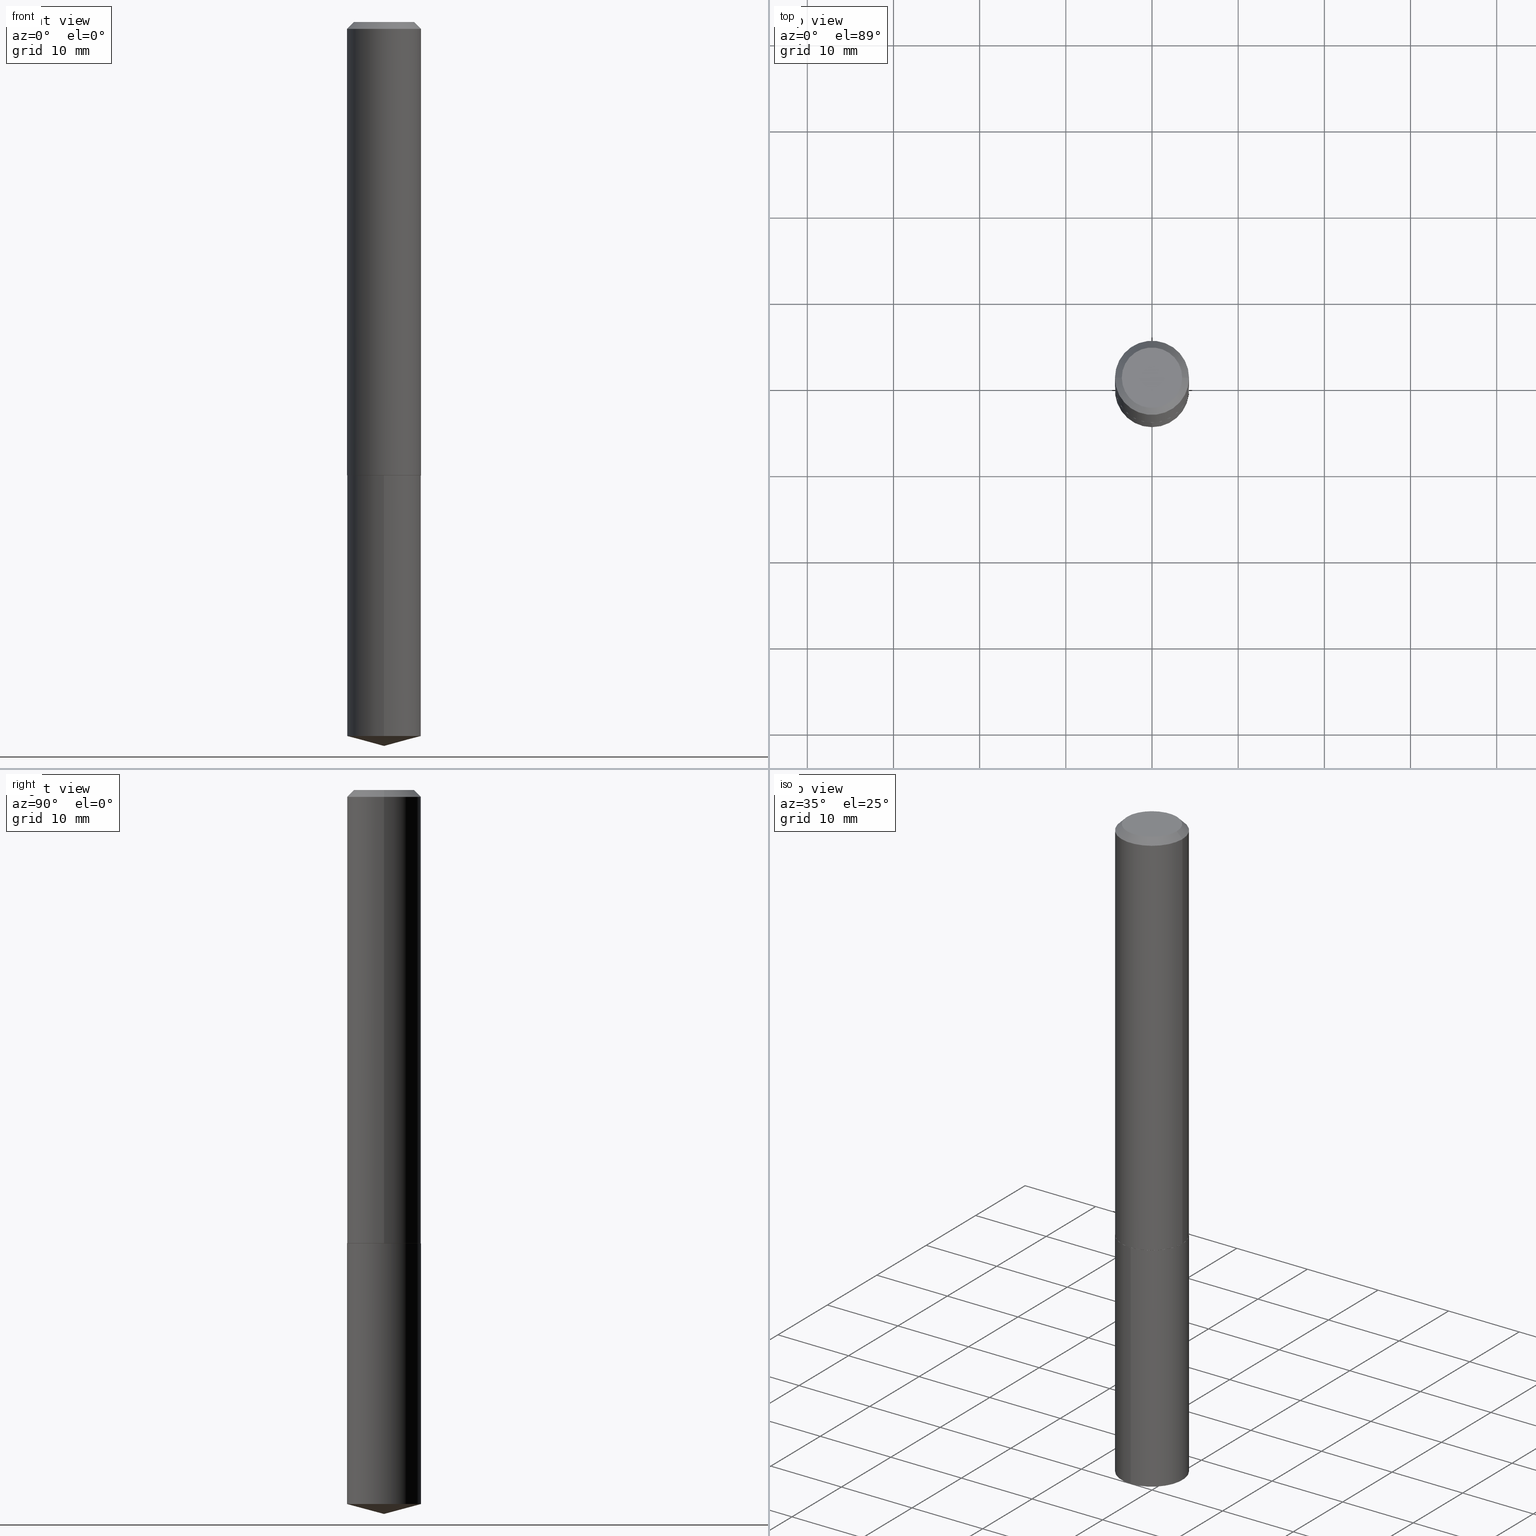
[diagram: canonical four-view strip — front | top / right | iso, engineering-drawing reading convention]
A machine part, canonical four-view strip (front | top / right | iso — engineering-drawing reading convention). The complete STEP part file that produces these views, byte-faithful:
ISO-10303-21;
HEADER;
FILE_DESCRIPTION (( 'STEP AP203' ),
    '1' );
FILE_NAME ('69021.STEP',
    '2024-04-23T14:23:53',
    ( '' ),
    ( '' ),
    'SwSTEP 2.0',
    'SolidWorks 2023',
    '' );
FILE_SCHEMA (( 'CONFIG_CONTROL_DESIGN' ));
ENDSEC;

DATA;
#1 = CARTESIAN_POINT ( 'NONE',  ( -0.1693000000000002836, -6.025814112298998676E-15, -2.070400000000000240 ) ) ;
#2 = AXIS2_PLACEMENT_3D ( 'NONE', #319, #142, #58 ) ;
#3 = CARTESIAN_POINT ( 'NONE',  ( -8.819312103173026393E-28, 1.259100217101036887E-13, 36.06297874015748306 ) ) ;
#4 = VERTEX_POINT ( 'NONE', #101 ) ;
#5 = EDGE_CURVE ( 'NONE', #293, #158, #303, .T. ) ;
#6 = EDGE_LOOP ( 'NONE', ( #354, #128, #26, #385 ) ) ;
#7 = DIRECTION ( 'NONE',  ( -2.445527322775399676E-29, 3.491397539755331184E-15, 1.000000000000000000 ) ) ;
#8 = ADVANCED_FACE ( 'NONE', ( #261 ), #163, .T. ) ;
#9 = CARTESIAN_POINT ( 'NONE',  ( 5.064321350728799708E-29, -7.230508704610271415E-15, -2.070900000000000407 ) ) ;
#10 = CARTESIAN_POINT ( 'NONE',  ( 5.063098616325708028E-29, -7.228762963940850701E-15, -2.070400000000000240 ) ) ;
#11 = DATE_AND_TIME ( #44, #309 ) ;
#12 = PRODUCT_DEFINITION_FORMATION_WITH_SPECIFIED_SOURCE ( 'ANY', '', #383, .NOT_KNOWN. ) ;
#13 = CARTESIAN_POINT ( 'NONE',  ( -1.182215581332204746E-15, -0.1693000000000113858, -3.261736201721411099 ) ) ;
#14 = SHAPE_DEFINITION_REPRESENTATION ( #217, #25 ) ;
#15 = DIRECTION ( 'NONE',  ( 1.000000000000000000, -6.982962677686264344E-15, 0.000000000000000000 ) ) ;
#16 = CARTESIAN_POINT ( 'NONE',  ( -8.819312103173026393E-28, 1.259100217101036887E-13, 36.06297874015748306 ) ) ;
#17 = DIRECTION ( 'NONE',  ( -1.000000000000000000, 6.982962677686265922E-15, -4.876176775795935793E-29 ) ) ;
#18 = ADVANCED_FACE ( 'NONE', ( #50 ), #279, .T. ) ;
#19 = CARTESIAN_POINT ( 'NONE',  ( 7.642090019328600035E-31, -1.091087918388489897E-16, -0.03125000000000020123 ) ) ;
#20 = ORIENTED_EDGE ( 'NONE', *, *, #286, .F. ) ;
#21 = APPROVAL_STATUS ( 'not_yet_approved' ) ;
#22 =( NAMED_UNIT ( * ) PLANE_ANGLE_UNIT ( ) SI_UNIT ( $, .RADIAN. ) );
#23 = FACE_OUTER_BOUND ( 'NONE', #243, .T. ) ;
#24 = DIRECTION ( 'NONE',  ( -2.445527322775399676E-29, 3.491397539755331184E-15, 1.000000000000000000 ) ) ;
#25 = ADVANCED_BREP_SHAPE_REPRESENTATION ( '69021', ( #162, #288, #70 ), #49 ) ;
#26 = ORIENTED_EDGE ( 'NONE', *, *, #121, .F. ) ;
#27 = PERSON_AND_ORGANIZATION ( #331, #337 ) ;
#28 = FACE_OUTER_BOUND ( 'NONE', #6, .T. ) ;
#29 = ORIENTED_EDGE ( 'NONE', *, *, #256, .T. ) ;
#30 = ADVANCED_FACE ( 'NONE', ( #291 ), #289, .F. ) ;
#31 = DIRECTION ( 'NONE',  ( -6.982962677686266711E-15, -1.000000000000000000, 3.510303681827621500E-15 ) ) ;
#32 = VECTOR ( 'NONE', #7, 39.37007874015748143 ) ;
#33 = UNCERTAINTY_MEASURE_WITH_UNIT (LENGTH_MEASURE( 1.000000000000000082E-05 ), #197, 'distance_accuracy_value', 'NONE');
#34 = DIRECTION ( 'NONE',  ( 1.000000000000000000, -6.982962677686267499E-15, 0.000000000000000000 ) ) ;
#35 = DIRECTION ( 'NONE',  ( -6.745023994389839133E-15, -0.9659258262890676461, 0.2588190451025227934 ) ) ;
#36 = EDGE_LOOP ( 'NONE', ( #174, #389, #147 ) ) ;
#37 = CARTESIAN_POINT ( 'NONE',  ( -0.1693000000000000338, 1.073106789493436109E-15, -0.03125000000000020123 ) ) ;
#38 = VECTOR ( 'NONE', #151, 39.37007874015748143 ) ;
#39 = APPROVAL_PERSON_ORGANIZATION ( #46, #271, #226 ) ;
#40 = DIRECTION ( 'NONE',  ( -0.7071067811865453523, 2.468850131082234184E-15, -0.7071067811865496822 ) ) ;
#41 = ORIENTED_EDGE ( 'NONE', *, *, #379, .F. ) ;
#42 = DIRECTION ( 'NONE',  ( -6.982962677686265922E-15, -1.000000000000000000, 3.227227399485248397E-15 ) ) ;
#43 = EDGE_CURVE ( 'NONE', #208, #375, #178, .T. ) ;
#44 = CALENDAR_DATE ( 2024, 23, 4 ) ;
#45 = AXIS2_PLACEMENT_3D ( 'NONE', #9, #339, #42 ) ;
#46 = PERSON_AND_ORGANIZATION ( #331, #337 ) ;
#47 = AXIS2_PLACEMENT_3D ( 'NONE', #229, #227, #356 ) ;
#48 = DIRECTION ( 'NONE',  ( -6.982962677686266711E-15, -1.000000000000000000, 3.510303681827621500E-15 ) ) ;
#49 =( GEOMETRIC_REPRESENTATION_CONTEXT ( 3 ) GLOBAL_UNCERTAINTY_ASSIGNED_CONTEXT ( ( #33 ) ) GLOBAL_UNIT_ASSIGNED_CONTEXT ( ( #197, #22, #177 ) ) REPRESENTATION_CONTEXT ( 'NONE', 'WORKASPACE' ) );
#50 = FACE_OUTER_BOUND ( 'NONE', #239, .T. ) ;
#51 = ADVANCED_FACE ( 'NONE', ( #23 ), #77, .F. ) ;
#52 = CARTESIAN_POINT ( 'NONE',  ( 0.1693000000000002836, -8.410978545273137094E-15, -2.070400000000000240 ) ) ;
#53 = CC_DESIGN_DATE_AND_TIME_ASSIGNMENT ( #257, #76, ( #71 ) ) ;
#54 = CARTESIAN_POINT ( 'NONE',  ( 5.063098616325708028E-29, -7.228762963940850701E-15, -2.070400000000000240 ) ) ;
#55 = COORDINATED_UNIVERSAL_TIME_OFFSET ( 5, 0, .BEHIND. ) ;
#56 = ORIENTED_EDGE ( 'NONE', *, *, #286, .T. ) ;
#57 = DATE_AND_TIME ( #346, #83 ) ;
#58 = DIRECTION ( 'NONE',  ( -6.982962677686265922E-15, -1.000000000000000000, 3.227227399485248397E-15 ) ) ;
#59 = APPROVAL_DATE_TIME ( #81, #241 ) ;
#60 = LINE ( 'NONE', #359, #38 ) ;
#61 = ORIENTED_EDGE ( 'NONE', *, *, #167, .F. ) ;
#62 = PERSON_AND_ORGANIZATION ( #331, #337 ) ;
#63 = ORIENTED_EDGE ( 'NONE', *, *, #121, .T. ) ;
#64 = CYLINDRICAL_SURFACE ( 'NONE', #388, 0.1693000000000000338 ) ;
#65 = AXIS2_PLACEMENT_3D ( 'NONE', #84, #345, #15 ) ;
#66 = CIRCLE ( 'NONE', #103, 0.1688000000000002554 ) ;
#67 = CARTESIAN_POINT ( 'NONE',  ( 7.642090019328600035E-31, -1.091087918388489897E-16, -0.03125000000000020123 ) ) ;
#68 = ORIENTED_EDGE ( 'NONE', *, *, #311, .F. ) ;
#69 = VECTOR ( 'NONE', #250, 39.37007874015748143 ) ;
#70 = AXIS2_PLACEMENT_3D ( 'NONE', #230, #282, #169 ) ;
#71 = PRODUCT_DEFINITION ( 'UNKNOWN', '', #12, #276 ) ;
#72 = DIRECTION ( 'NONE',  ( -1.000000000000000000, 6.982962677686265922E-15, 0.000000000000000000 ) ) ;
#73 = CONICAL_SURFACE ( 'NONE', #284, 0.1693000000000002836, 0.7853981633978580623 ) ;
#74 = AXIS2_PLACEMENT_3D ( 'NONE', #10, #139, #376 ) ;
#75 = CARTESIAN_POINT ( 'NONE',  ( -5.989671091818699506E-48, 8.551662891794013634E-34, 2.449293598294725547E-19 ) ) ;
#76 = DATE_TIME_ROLE ( 'creation_date' ) ;
#77 = PLANE ( 'NONE',  #111 ) ;
#78 = PERSON_AND_ORGANIZATION ( #331, #337 ) ;
#79 = LENGTH_MEASURE_WITH_UNIT ( LENGTH_MEASURE( 0.02539999999999999897 ), #170 );
#80 = ORIENTED_EDGE ( 'NONE', *, *, #149, .T. ) ;
#81 = DATE_AND_TIME ( #355, #349 ) ;
#82 = CLOSED_SHELL ( 'NONE', ( #18, #353, #188, #182, #161, #244, #8, #51 ) ) ;
#83 = LOCAL_TIME ( 10, 23, 53.00000000000000000, #222 ) ;
#84 = CARTESIAN_POINT ( 'NONE',  ( 5.063098616325708028E-29, -7.228762963940850701E-15, -2.070400000000000240 ) ) ;
#85 = ORIENTED_EDGE ( 'NONE', *, *, #88, .F. ) ;
#86 = DIRECTION ( 'NONE',  ( 1.000000000000000000, -6.982962677686266711E-15, 4.876184709317979001E-29 ) ) ;
#87 = EDGE_CURVE ( 'NONE', #301, #126, #275, .T. ) ;
#88 = EDGE_CURVE ( 'NONE', #358, #375, #380, .T. ) ;
#89 = FACE_OUTER_BOUND ( 'NONE', #152, .T. ) ;
#90 = AXIS2_PLACEMENT_3D ( 'NONE', #154, #204, #363 ) ;
#91 = LOCAL_TIME ( 10, 23, 53.00000000000000000, #189 ) ;
#92 = VERTEX_POINT ( 'NONE', #13 ) ;
#93 = PERSON_AND_ORGANIZATION ( #331, #337 ) ;
#94 = CARTESIAN_POINT ( 'NONE',  ( -0.1693000000000000338, -2.465987026247997876E-15, -0.03125000000000020123 ) ) ;
#95 = EDGE_LOOP ( 'NONE', ( #41, #343, #213, #223 ) ) ;
#96 = DIRECTION ( 'NONE',  ( -2.445527322775399676E-29, 3.491397539755331184E-15, 1.000000000000000000 ) ) ;
#97 = DIRECTION ( 'NONE',  ( 1.000000000000000000, -6.982962677686266711E-15, 4.876176775795935793E-29 ) ) ;
#98 = AXIS2_PLACEMENT_3D ( 'NONE', #75, #168, #386 ) ;
#99 = VECTOR ( 'NONE', #187, 39.37007874015748143 ) ;
#100 = ADVANCED_FACE ( 'NONE', ( #323 ), #384, .T. ) ;
#101 = CARTESIAN_POINT ( 'NONE',  ( 0.1380500000000000060, -1.108841425726964737E-15, 2.449293598367200216E-19 ) ) ;
#102 = LINE ( 'NONE', #372, #32 ) ;
#103 = AXIS2_PLACEMENT_3D ( 'NONE', #280, #218, #34 ) ;
#104 = EDGE_LOOP ( 'NONE', ( #63, #118, #130, #85 ) ) ;
#105 = FACE_OUTER_BOUND ( 'NONE', #104, .T. ) ;
#106 = EDGE_CURVE ( 'NONE', #265, #4, #248, .T. ) ;
#107 = PERSON_AND_ORGANIZATION_ROLE ( 'creator' ) ;
#108 = CARTESIAN_POINT ( 'NONE',  ( 5.064321350728799708E-29, -7.230508704610271415E-15, -2.070900000000000407 ) ) ;
#109 = EDGE_CURVE ( 'NONE', #365, #299, #117, .T. ) ;
#110 = PERSON_AND_ORGANIZATION ( #331, #337 ) ;
#111 = AXIS2_PLACEMENT_3D ( 'NONE', #171, #225, #17 ) ;
#112 = DIRECTION ( 'NONE',  ( 1.000000000000000000, -6.982962677686265922E-15, 0.000000000000000000 ) ) ;
#113 = FACE_OUTER_BOUND ( 'NONE', #212, .T. ) ;
#114 = CARTESIAN_POINT ( 'NONE',  ( 7.976543818988589175E-29, -1.138819128955199005E-14, -3.261736201721411543 ) ) ;
#115 = APPROVAL_ROLE ( '' ) ;
#116 = CC_DESIGN_PERSON_AND_ORGANIZATION_ASSIGNMENT ( #264, #206, ( #12 ) ) ;
#117 = LINE ( 'NONE', #378, #357 ) ;
#118 = ORIENTED_EDGE ( 'NONE', *, *, #305, .T. ) ;
#119 = DIRECTION ( 'NONE',  ( -2.445468806185136597E-29, 3.491481338843145583E-15, 1.000000000000000000 ) ) ;
#120 = ORIENTED_EDGE ( 'NONE', *, *, #149, .F. ) ;
#121 = EDGE_CURVE ( 'NONE', #358, #205, #192, .T. ) ;
#122 = EDGE_LOOP ( 'NONE', ( #273, #159 ) ) ;
#123 = ORIENTED_EDGE ( 'NONE', *, *, #173, .T. ) ;
#124 = CC_DESIGN_PERSON_AND_ORGANIZATION_ASSIGNMENT ( #78, #107, ( #71 ) ) ;
#125 = COORDINATED_UNIVERSAL_TIME_OFFSET ( 5, 0, .BEHIND. ) ;
#126 = VERTEX_POINT ( 'NONE', #191 ) ;
#127 = DATE_TIME_ROLE ( 'classification_date' ) ;
#128 = ORIENTED_EDGE ( 'NONE', *, *, #167, .T. ) ;
#129 = CYLINDRICAL_SURFACE ( 'NONE', #146, 0.1693000000000001448 ) ;
#130 = ORIENTED_EDGE ( 'NONE', *, *, #325, .F. ) ;
#131 = DIRECTION ( 'NONE',  ( -2.445468806185136597E-29, 3.491481338843145583E-15, 1.000000000000000000 ) ) ;
#132 = EDGE_LOOP ( 'NONE', ( #387, #350, #199, #20 ) ) ;
#133 = CARTESIAN_POINT ( 'NONE',  ( 7.976543818988589175E-29, -1.138819128955199005E-14, -3.261736201721411543 ) ) ;
#134 = AXIS2_PLACEMENT_3D ( 'NONE', #3, #96, #31 ) ;
#135 = LOCAL_TIME ( 10, 23, 53.00000000000000000, #125 ) ;
#136 = LINE ( 'NONE', #252, #361 ) ;
#137 = CC_DESIGN_DATE_AND_TIME_ASSIGNMENT ( #203, #127, ( #215 ) ) ;
#138 = DIRECTION ( 'NONE',  ( -2.445468806185136597E-29, 3.491481338843145583E-15, 1.000000000000000000 ) ) ;
#139 = DIRECTION ( 'NONE',  ( -2.445468806185136597E-29, 3.491481338843145583E-15, 1.000000000000000000 ) ) ;
#140 = APPROVAL_PERSON_ORGANIZATION ( #224, #281, #196 ) ;
#141 = CALENDAR_DATE ( 2024, 23, 4 ) ;
#142 = DIRECTION ( 'NONE',  ( -2.445527322775399676E-29, 3.491397539755331184E-15, 1.000000000000000000 ) ) ;
#143 = DIRECTION ( 'NONE',  ( -2.445527322775399676E-29, 3.491397539755331184E-15, 1.000000000000000000 ) ) ;
#144 = LINE ( 'NONE', #258, #322 ) ;
#145 = DIRECTION ( 'NONE',  ( 2.445468806185136597E-29, -3.491481338843145583E-15, -1.000000000000000000 ) ) ;
#146 = AXIS2_PLACEMENT_3D ( 'NONE', #364, #138, #306 ) ;
#147 = ORIENTED_EDGE ( 'NONE', *, *, #294, .F. ) ;
#148 = CARTESIAN_POINT ( 'NONE',  ( 0.1693000000000001448, -1.182215581332285999E-15, 8.255367281422526831E-30 ) ) ;
#149 = EDGE_CURVE ( 'NONE', #299, #92, #374, .T. ) ;
#150 = CARTESIAN_POINT ( 'NONE',  ( 5.064321350728799708E-29, -7.230508704610271415E-15, -2.070899999999999963 ) ) ;
#151 = DIRECTION ( 'NONE',  ( -2.445527322775399676E-29, 3.491397539755331184E-15, 1.000000000000000000 ) ) ;
#152 = EDGE_LOOP ( 'NONE', ( #219, #68 ) ) ;
#153 = CALENDAR_DATE ( 2024, 23, 4 ) ;
#154 = CARTESIAN_POINT ( 'NONE',  ( 5.063098616325708028E-29, -7.228762963940850701E-15, -2.070400000000000240 ) ) ;
#155 = ORIENTED_EDGE ( 'NONE', *, *, #379, .T. ) ;
#156 = EDGE_LOOP ( 'NONE', ( #326, #80, #56, #338 ) ) ;
#157 = FACE_OUTER_BOUND ( 'NONE', #238, .T. ) ;
#158 = VERTEX_POINT ( 'NONE', #195 ) ;
#159 = ORIENTED_EDGE ( 'NONE', *, *, #5, .T. ) ;
#160 = DIRECTION ( 'NONE',  ( -2.445527322775399676E-29, 3.491397539755331184E-15, 1.000000000000000000 ) ) ;
#161 = ADVANCED_FACE ( 'NONE', ( #315 ), #73, .T. ) ;
#162 = MANIFOLD_SOLID_BREP ( 'Body-Move/Copy2[1]', #165 ) ;
#163 = CONICAL_SURFACE ( 'NONE', #320, 0.1693000000000000338, 0.7853981633974452814 ) ;
#164 = DIRECTION ( 'NONE',  ( 6.982962677686265922E-15, 1.000000000000000000, -3.491397539755331184E-15 ) ) ;
#165 = CLOSED_SHELL ( 'NONE', ( #175, #209, #368, #100, #30 ) ) ;
#166 = APPROVAL_PERSON_ORGANIZATION ( #93, #241, #115 ) ;
#167 = EDGE_CURVE ( 'NONE', #126, #205, #270, .T. ) ;
#168 = DIRECTION ( 'NONE',  ( -2.445468806185136597E-29, 3.491481338843145583E-15, 1.000000000000000000 ) ) ;
#169 = DIRECTION ( 'NONE',  ( 1.000000000000000000, 0.000000000000000000, 0.000000000000000000 ) ) ;
#170 =( LENGTH_UNIT ( ) NAMED_UNIT ( * ) SI_UNIT ( $, .METRE. ) );
#171 = CARTESIAN_POINT ( 'NONE',  ( -2.994835545909349753E-48, 4.275831445897006817E-34, 1.224646799147362773E-19 ) ) ;
#172 = EDGE_CURVE ( 'NONE', #299, #293, #60, .T. ) ;
#173 = EDGE_CURVE ( 'NONE', #4, #265, #340, .T. ) ;
#174 = ORIENTED_EDGE ( 'NONE', *, *, #256, .F. ) ;
#175 = ADVANCED_FACE ( 'NONE', ( #295 ), #64, .T. ) ;
#176 = PERSON_AND_ORGANIZATION_ROLE ( 'classification_officer' ) ;
#177 =( NAMED_UNIT ( * ) SI_UNIT ( $, .STERADIAN. ) SOLID_ANGLE_UNIT ( ) );
#178 = CIRCLE ( 'NONE', #329, 0.1693000000000000338 ) ;
#179 = ORIENTED_EDGE ( 'NONE', *, *, #328, .T. ) ;
#180 = DIRECTION ( 'NONE',  ( -6.982962677686265922E-15, -1.000000000000000000, 3.227227399485248397E-15 ) ) ;
#181 = FACE_OUTER_BOUND ( 'NONE', #36, .T. ) ;
#182 = ADVANCED_FACE ( 'NONE', ( #89 ), #272, .F. ) ;
#183 = LINE ( 'NONE', #278, #69 ) ;
#184 = AXIS2_PLACEMENT_3D ( 'NONE', #382, #352, #164 ) ;
#185 = CC_DESIGN_PERSON_AND_ORGANIZATION_ASSIGNMENT ( #110, #313, ( #383 ) ) ;
#186 = CIRCLE ( 'NONE', #236, 0.1693000000000000338 ) ;
#187 = DIRECTION ( 'NONE',  ( -2.445468806185136877E-29, 3.491481338843145188E-15, 1.000000000000000000 ) ) ;
#188 = ADVANCED_FACE ( 'NONE', ( #28 ), #314, .T. ) ;
#189 = COORDINATED_UNIVERSAL_TIME_OFFSET ( 5, 0, .BEHIND. ) ;
#190 = APPLICATION_CONTEXT ( 'configuration controlled 3d designs of mechanical parts and assemblies' ) ;
#191 = CARTESIAN_POINT ( 'NONE',  ( -0.1688000000000002554, -6.028463339473109878E-15, -2.070899999999999963 ) ) ;
#192 = CIRCLE ( 'NONE', #65, 0.1693000000000002836 ) ;
#193 = CIRCLE ( 'NONE', #74, 0.1693000000000002836 ) ;
#194 = APPLICATION_PROTOCOL_DEFINITION ( 'international standard', 'config_control_design', 1994, #214 ) ;
#195 = CARTESIAN_POINT ( 'NONE',  ( -1.182215581332234328E-15, -0.1693000000000072502, -2.070899999999999963 ) ) ;
#196 = APPROVAL_ROLE ( '' ) ;
#197 =( CONVERSION_BASED_UNIT ( 'INCH', #79 ) LENGTH_UNIT ( ) NAMED_UNIT ( #211 ) );
#198 = DIRECTION ( 'NONE',  ( 2.445468806185136597E-29, -3.491481338843145583E-15, -1.000000000000000000 ) ) ;
#199 = ORIENTED_EDGE ( 'NONE', *, *, #321, .F. ) ;
#200 = CIRCLE ( 'NONE', #287, 0.1693000000000000338 ) ;
#201 = DIRECTION ( 'NONE',  ( -6.982962677686265922E-15, -1.000000000000000000, 3.227227399485248397E-15 ) ) ;
#202 = PRODUCT_RELATED_PRODUCT_CATEGORY ( 'detail', '', ( #383 ) ) ;
#203 = DATE_AND_TIME ( #153, #135 ) ;
#204 = DIRECTION ( 'NONE',  ( -2.445468806185136597E-29, 3.491481338843145583E-15, 1.000000000000000000 ) ) ;
#205 = VERTEX_POINT ( 'NONE', #1 ) ;
#206 = PERSON_AND_ORGANIZATION_ROLE ( 'design_supplier' ) ;
#207 = VECTOR ( 'NONE', #348, 39.37007874015748143 ) ;
#208 = VERTEX_POINT ( 'NONE', #94 ) ;
#209 = ADVANCED_FACE ( 'NONE', ( #181 ), #266, .T. ) ;
#210 = DIRECTION ( 'NONE',  ( -0.7071067811868372299, 7.493145998871401767E-15, 0.7071067811862578045 ) ) ;
#211 = DIMENSIONAL_EXPONENTS ( 1.000000000000000000, 0.000000000000000000, 0.000000000000000000, 0.000000000000000000, 0.000000000000000000, 0.000000000000000000, 0.000000000000000000 ) ;
#212 = EDGE_LOOP ( 'NONE', ( #298, #29, #120 ) ) ;
#213 = ORIENTED_EDGE ( 'NONE', *, *, #246, .T. ) ;
#214 = APPLICATION_CONTEXT ( 'configuration controlled 3d designs of mechanical parts and assemblies' ) ;
#215 = SECURITY_CLASSIFICATION ( '', '', #235 ) ;
#216 = CIRCLE ( 'NONE', #45, 0.1693000000000000338 ) ;
#217 = PRODUCT_DEFINITION_SHAPE ( 'NONE', 'NONE',  #71 ) ;
#218 = DIRECTION ( 'NONE',  ( -2.445468806185136597E-29, 3.491481338843145583E-15, 1.000000000000000000 ) ) ;
#219 = ORIENTED_EDGE ( 'NONE', *, *, #87, .F. ) ;
#220 = CARTESIAN_POINT ( 'NONE',  ( -0.1380500000000000060, 1.018552393574012742E-15, 2.449293598225403624E-19 ) ) ;
#221 = AXIS2_PLACEMENT_3D ( 'NONE', #245, #366, #97 ) ;
#222 = COORDINATED_UNIVERSAL_TIME_OFFSET ( 5, 0, .BEHIND. ) ;
#223 = ORIENTED_EDGE ( 'NONE', *, *, #43, .T. ) ;
#224 = PERSON_AND_ORGANIZATION ( #331, #337 ) ;
#225 = DIRECTION ( 'NONE',  ( 2.438088387897960049E-29, -3.491481338843145188E-15, -1.000000000000000000 ) ) ;
#226 = APPROVAL_ROLE ( '' ) ;
#227 = DIRECTION ( 'NONE',  ( -2.445468806185136597E-29, 3.491481338843145583E-15, 1.000000000000000000 ) ) ;
#228 = APPLICATION_PROTOCOL_DEFINITION ( 'international standard', 'config_control_design', 1994, #190 ) ;
#229 = CARTESIAN_POINT ( 'NONE',  ( 5.064321350728799708E-29, -7.230508704610271415E-15, -2.070899999999999963 ) ) ;
#230 = CARTESIAN_POINT ( 'NONE',  ( 0.000000000000000000, 0.000000000000000000, 0.000000000000000000 ) ) ;
#231 = COORDINATED_UNIVERSAL_TIME_OFFSET ( 5, 0, .BEHIND. ) ;
#232 = DIRECTION ( 'NONE',  ( 6.863315791527694259E-15, 0.9659258262890694224, 0.2588190451025160765 ) ) ;
#233 = ORIENTED_EDGE ( 'NONE', *, *, #173, .F. ) ;
#234 = VECTOR ( 'NONE', #210, 39.37007874015748143 ) ;
#235 = SECURITY_CLASSIFICATION_LEVEL ( 'unclassified' ) ;
#236 = AXIS2_PLACEMENT_3D ( 'NONE', #133, #160, #308 ) ;
#237 = DIRECTION ( 'NONE',  ( -2.445468806185136597E-29, 3.491481338843145583E-15, 1.000000000000000000 ) ) ;
#238 = EDGE_LOOP ( 'NONE', ( #367, #179, #274, #290 ) ) ;
#239 = EDGE_LOOP ( 'NONE', ( #233, #155, #360, #390 ) ) ;
#240 = AXIS2_PLACEMENT_3D ( 'NONE', #114, #143, #255 ) ;
#241 = APPROVAL ( #21, 'UNSPECIFIED' ) ;
#242 = CARTESIAN_POINT ( 'NONE',  ( -5.989671091818699506E-48, 8.551662891794013634E-34, 2.449293598294725547E-19 ) ) ;
#243 = EDGE_LOOP ( 'NONE', ( #268, #123 ) ) ;
#244 = ADVANCED_FACE ( 'NONE', ( #157 ), #129, .T. ) ;
#245 = CARTESIAN_POINT ( 'NONE',  ( 0.000000000000000000, 0.000000000000000000, 0.000000000000000000 ) ) ;
#246 = EDGE_CURVE ( 'NONE', #265, #208, #251, .T. ) ;
#247 = CARTESIAN_POINT ( 'NONE',  ( -0.1693000000000001448, 1.202948851641850644E-15, -8.327757107801562718E-30 ) ) ;
#248 = CIRCLE ( 'NONE', #98, 0.1380500000000000060 ) ;
#249 = CONICAL_SURFACE ( 'NONE', #362, 146.9311341562558084, 1.308996938995748538 ) ;
#250 = DIRECTION ( 'NONE',  ( 0.7071067811868372299, -2.468850131085291414E-15, 0.7071067811862578045 ) ) ;
#251 = LINE ( 'NONE', #37, #307 ) ;
#252 = CARTESIAN_POINT ( 'NONE',  ( 8.087361045136971753E-29, -1.154674788278676683E-14, -3.307100000000000151 ) ) ;
#253 = CC_DESIGN_SECURITY_CLASSIFICATION ( #215, ( #12 ) ) ;
#254 = CARTESIAN_POINT ( 'NONE',  ( 7.642090019328600035E-31, -1.091087918388489897E-16, -0.03125000000000020123 ) ) ;
#255 = DIRECTION ( 'NONE',  ( -6.982962677686265922E-15, -1.000000000000000000, 3.227227399485248397E-15 ) ) ;
#256 = EDGE_CURVE ( 'NONE', #365, #92, #136, .T. ) ;
#257 = DATE_AND_TIME ( #141, #91 ) ;
#258 = CARTESIAN_POINT ( 'NONE',  ( 0.1693000000000000338, -1.270591102861569468E-15, -0.03125000000000020123 ) ) ;
#259 = DIRECTION ( 'NONE',  ( -2.445527322775399676E-29, 3.491397539755331184E-15, 1.000000000000000000 ) ) ;
#260 = AXIS2_PLACEMENT_3D ( 'NONE', #242, #237, #86 ) ;
#261 = FACE_OUTER_BOUND ( 'NONE', #95, .T. ) ;
#262 = EDGE_LOOP ( 'NONE', ( #61, #333, #335, #263 ) ) ;
#263 = ORIENTED_EDGE ( 'NONE', *, *, #328, .F. ) ;
#264 = PERSON_AND_ORGANIZATION ( #331, #337 ) ;
#265 = VERTEX_POINT ( 'NONE', #220 ) ;
#266 = CONICAL_SURFACE ( 'NONE', #134, 146.9311341562558084, 1.308996938995748538 ) ;
#267 = DIRECTION ( 'NONE',  ( -2.438088387897960049E-29, 3.491481338843145188E-15, 1.000000000000000000 ) ) ;
#268 = ORIENTED_EDGE ( 'NONE', *, *, #106, .T. ) ;
#269 = EDGE_CURVE ( 'NONE', #301, #358, #183, .T. ) ;
#270 = LINE ( 'NONE', #332, #234 ) ;
#271 = APPROVAL ( #342, 'UNSPECIFIED' ) ;
#272 = PLANE ( 'NONE',  #336 ) ;
#273 = ORIENTED_EDGE ( 'NONE', *, *, #321, .T. ) ;
#274 = ORIENTED_EDGE ( 'NONE', *, *, #88, .T. ) ;
#275 = CIRCLE ( 'NONE', #47, 0.1688000000000002554 ) ;
#276 = DESIGN_CONTEXT ( 'detailed design', #214, 'design' ) ;
#277 = CYLINDRICAL_SURFACE ( 'NONE', #221, 0.1693000000000001448 ) ;
#278 = CARTESIAN_POINT ( 'NONE',  ( 0.1693000000000002836, -8.410978545273137094E-15, -2.070400000000000240 ) ) ;
#279 = CONICAL_SURFACE ( 'NONE', #296, 0.1693000000000000338, 0.7853981633974452814 ) ;
#280 = CARTESIAN_POINT ( 'NONE',  ( 5.064321350728799708E-29, -7.230508704610271415E-15, -2.070899999999999963 ) ) ;
#281 = APPROVAL ( #344, 'UNSPECIFIED' ) ;
#282 = DIRECTION ( 'NONE',  ( 0.000000000000000000, 0.000000000000000000, 1.000000000000000000 ) ) ;
#283 = DIRECTION ( 'NONE',  ( 1.000000000000000000, -6.982962677686265922E-15, 0.000000000000000000 ) ) ;
#284 = AXIS2_PLACEMENT_3D ( 'NONE', #54, #119, #330 ) ;
#285 = CARTESIAN_POINT ( 'NONE',  ( 7.642090019328600035E-31, -1.091087918388489897E-16, -0.03125000000000020123 ) ) ;
#286 = EDGE_CURVE ( 'NONE', #92, #158, #102, .T. ) ;
#287 = AXIS2_PLACEMENT_3D ( 'NONE', #67, #131, #283 ) ;
#288 = MANIFOLD_SOLID_BREP ( 'Body-Move/Copy2[2]', #82 ) ;
#289 = PLANE ( 'NONE',  #184 ) ;
#290 = ORIENTED_EDGE ( 'NONE', *, *, #43, .F. ) ;
#291 = FACE_OUTER_BOUND ( 'NONE', #122, .T. ) ;
#292 = DIRECTION ( 'NONE',  ( -1.000000000000000000, 6.982962677686265922E-15, 0.000000000000000000 ) ) ;
#293 = VERTEX_POINT ( 'NONE', #334 ) ;
#294 = EDGE_CURVE ( 'NONE', #92, #299, #186, .T. ) ;
#295 = FACE_OUTER_BOUND ( 'NONE', #132, .T. ) ;
#296 = AXIS2_PLACEMENT_3D ( 'NONE', #254, #198, #292 ) ;
#297 = CC_DESIGN_APPROVAL ( #271, ( #71 ) ) ;
#298 = ORIENTED_EDGE ( 'NONE', *, *, #109, .F. ) ;
#299 = VERTEX_POINT ( 'NONE', #370 ) ;
#300 = DIRECTION ( 'NONE',  ( 1.000000000000000000, -6.982962677686265922E-15, 4.876176775795935793E-29 ) ) ;
#301 = VERTEX_POINT ( 'NONE', #341 ) ;
#302 = CARTESIAN_POINT ( 'NONE',  ( 5.064321350728799708E-29, -7.230508704610271415E-15, -2.070900000000000407 ) ) ;
#303 = CIRCLE ( 'NONE', #381, 0.1693000000000000338 ) ;
#304 = LINE ( 'NONE', #247, #99 ) ;
#305 = EDGE_CURVE ( 'NONE', #205, #208, #304, .T. ) ;
#306 = DIRECTION ( 'NONE',  ( 1.000000000000000000, -6.982962677686266711E-15, 4.876176775795935793E-29 ) ) ;
#307 = VECTOR ( 'NONE', #40, 39.37007874015748143 ) ;
#308 = DIRECTION ( 'NONE',  ( -6.982962677686265922E-15, -1.000000000000000000, 3.227227399485248397E-15 ) ) ;
#309 = LOCAL_TIME ( 10, 23, 53.00000000000000000, #55 ) ;
#310 = CC_DESIGN_PERSON_AND_ORGANIZATION_ASSIGNMENT ( #62, #324, ( #12 ) ) ;
#311 = EDGE_CURVE ( 'NONE', #126, #301, #66, .T. ) ;
#312 = CARTESIAN_POINT ( 'NONE',  ( 8.087603409150524140E-29, -1.154640080372485751E-14, -3.307100000000000151 ) ) ;
#313 = PERSON_AND_ORGANIZATION_ROLE ( 'design_owner' ) ;
#314 = CONICAL_SURFACE ( 'NONE', #90, 0.1693000000000002836, 0.7853981633978580623 ) ;
#315 = FACE_OUTER_BOUND ( 'NONE', #262, .T. ) ;
#316 = DIRECTION ( 'NONE',  ( -2.445527322775399676E-29, 3.491397539755331184E-15, 1.000000000000000000 ) ) ;
#317 = DIRECTION ( 'NONE',  ( -2.445468806185136597E-29, 3.491481338843145583E-15, 1.000000000000000000 ) ) ;
#318 = MECHANICAL_CONTEXT ( 'NONE', #190, 'mechanical' ) ;
#319 = CARTESIAN_POINT ( 'NONE',  ( 5.064321350728799708E-29, -7.230508704610271415E-15, -2.070900000000000407 ) ) ;
#320 = AXIS2_PLACEMENT_3D ( 'NONE', #19, #145, #72 ) ;
#321 = EDGE_CURVE ( 'NONE', #158, #293, #216, .T. ) ;
#322 = VECTOR ( 'NONE', #351, 39.37007874015748143 ) ;
#323 = FACE_OUTER_BOUND ( 'NONE', #156, .T. ) ;
#324 = PERSON_AND_ORGANIZATION_ROLE ( 'creator' ) ;
#325 = EDGE_CURVE ( 'NONE', #375, #208, #200, .T. ) ;
#326 = ORIENTED_EDGE ( 'NONE', *, *, #172, .F. ) ;
#327 = APPROVAL_DATE_TIME ( #11, #281 ) ;
#328 = EDGE_CURVE ( 'NONE', #205, #358, #193, .T. ) ;
#329 = AXIS2_PLACEMENT_3D ( 'NONE', #285, #317, #112 ) ;
#330 = DIRECTION ( 'NONE',  ( 1.000000000000000000, -6.982962677686264344E-15, 0.000000000000000000 ) ) ;
#331 = PERSON ( 'UNSPECIFIED', 'UNSPECIFIED', 'UNSPECIFIED', ('UNSPECIFIED'), ('UNSPECIFIED'), ('UNSPECIFIED') ) ;
#332 = CARTESIAN_POINT ( 'NONE',  ( -0.1693000000000002836, -6.025814112298998676E-15, -2.070400000000000240 ) ) ;
#333 = ORIENTED_EDGE ( 'NONE', *, *, #311, .T. ) ;
#334 = CARTESIAN_POINT ( 'NONE',  ( 1.202948851641929530E-15, 0.1692999999999928173, -2.070900000000000851 ) ) ;
#335 = ORIENTED_EDGE ( 'NONE', *, *, #269, .T. ) ;
#336 = AXIS2_PLACEMENT_3D ( 'NONE', #150, #267, #300 ) ;
#337 = ORGANIZATION ( 'UNSPECIFIED', 'UNSPECIFIED', '' ) ;
#338 = ORIENTED_EDGE ( 'NONE', *, *, #5, .F. ) ;
#339 = DIRECTION ( 'NONE',  ( -2.445527322775399676E-29, 3.491397539755331184E-15, 1.000000000000000000 ) ) ;
#340 = CIRCLE ( 'NONE', #260, 0.1380500000000000060 ) ;
#341 = CARTESIAN_POINT ( 'NONE',  ( 0.1688000000000002554, -8.409232804603714801E-15, -2.070899999999999963 ) ) ;
#342 = APPROVAL_STATUS ( 'not_yet_approved' ) ;
#343 = ORIENTED_EDGE ( 'NONE', *, *, #106, .F. ) ;
#344 = APPROVAL_STATUS ( 'not_yet_approved' ) ;
#345 = DIRECTION ( 'NONE',  ( -2.445468806185136597E-29, 3.491481338843145583E-15, 1.000000000000000000 ) ) ;
#346 = CALENDAR_DATE ( 2024, 23, 4 ) ;
#347 = CARTESIAN_POINT ( 'NONE',  ( 0.1693000000000000338, -1.291324373171134113E-15, -0.03125000000000020123 ) ) ;
#348 = DIRECTION ( 'NONE',  ( -2.445468806185136877E-29, 3.491481338843145188E-15, 1.000000000000000000 ) ) ;
#349 = LOCAL_TIME ( 10, 23, 53.00000000000000000, #231 ) ;
#350 = ORIENTED_EDGE ( 'NONE', *, *, #172, .T. ) ;
#351 = DIRECTION ( 'NONE',  ( 0.7071067811865453523, -7.319954787623248157E-15, -0.7071067811865496822 ) ) ;
#352 = DIRECTION ( 'NONE',  ( 2.445527322775399396E-29, -3.491397539755331184E-15, -1.000000000000000000 ) ) ;
#353 = ADVANCED_FACE ( 'NONE', ( #105 ), #277, .T. ) ;
#354 = ORIENTED_EDGE ( 'NONE', *, *, #87, .T. ) ;
#355 = CALENDAR_DATE ( 2024, 23, 4 ) ;
#356 = DIRECTION ( 'NONE',  ( 1.000000000000000000, -6.982962677686267499E-15, 0.000000000000000000 ) ) ;
#357 = VECTOR ( 'NONE', #232, 39.37007874015748143 ) ;
#358 = VERTEX_POINT ( 'NONE', #52 ) ;
#359 = CARTESIAN_POINT ( 'NONE',  ( 1.202948851641900145E-15, 0.1692999999999927896, -2.070900000000000851 ) ) ;
#360 = ORIENTED_EDGE ( 'NONE', *, *, #325, .T. ) ;
#361 = VECTOR ( 'NONE', #35, 39.37007874015748854 ) ;
#362 = AXIS2_PLACEMENT_3D ( 'NONE', #16, #316, #48 ) ;
#363 = DIRECTION ( 'NONE',  ( 1.000000000000000000, -6.982962677686264344E-15, 0.000000000000000000 ) ) ;
#364 = CARTESIAN_POINT ( 'NONE',  ( 0.000000000000000000, 0.000000000000000000, 0.000000000000000000 ) ) ;
#365 = VERTEX_POINT ( 'NONE', #312 ) ;
#366 = DIRECTION ( 'NONE',  ( -2.445468806185136597E-29, 3.491481338843145583E-15, 1.000000000000000000 ) ) ;
#367 = ORIENTED_EDGE ( 'NONE', *, *, #305, .F. ) ;
#368 = ADVANCED_FACE ( 'NONE', ( #113 ), #249, .T. ) ;
#369 = CC_DESIGN_APPROVAL ( #281, ( #12 ) ) ;
#370 = CARTESIAN_POINT ( 'NONE',  ( 1.202948851641929333E-15, 0.1692999999999886263, -3.261736201721411987 ) ) ;
#371 = CC_DESIGN_PERSON_AND_ORGANIZATION_ASSIGNMENT ( #27, #176, ( #215 ) ) ;
#372 = CARTESIAN_POINT ( 'NONE',  ( -1.182215581332234328E-15, -0.1693000000000072502, -2.070899999999999963 ) ) ;
#373 = APPROVAL_DATE_TIME ( #57, #271 ) ;
#374 = CIRCLE ( 'NONE', #240, 0.1693000000000000338 ) ;
#375 = VERTEX_POINT ( 'NONE', #347 ) ;
#376 = DIRECTION ( 'NONE',  ( 1.000000000000000000, -6.982962677686264344E-15, 0.000000000000000000 ) ) ;
#377 = CC_DESIGN_APPROVAL ( #241, ( #215 ) ) ;
#378 = CARTESIAN_POINT ( 'NONE',  ( 8.087605534396835556E-29, -1.154640080372485751E-14, -3.307100000000000151 ) ) ;
#379 = EDGE_CURVE ( 'NONE', #4, #375, #144, .T. ) ;
#380 = LINE ( 'NONE', #148, #207 ) ;
#381 = AXIS2_PLACEMENT_3D ( 'NONE', #108, #259, #201 ) ;
#382 = CARTESIAN_POINT ( 'NONE',  ( 5.064321350728799708E-29, -7.230508704610271415E-15, -2.070900000000000407 ) ) ;
#383 = PRODUCT ( '69021', '69021', '', ( #318 ) ) ;
#384 = CYLINDRICAL_SURFACE ( 'NONE', #2, 0.1693000000000000338 ) ;
#385 = ORIENTED_EDGE ( 'NONE', *, *, #269, .F. ) ;
#386 = DIRECTION ( 'NONE',  ( 1.000000000000000000, -6.982962677686266711E-15, 4.876184709317979001E-29 ) ) ;
#387 = ORIENTED_EDGE ( 'NONE', *, *, #294, .T. ) ;
#388 = AXIS2_PLACEMENT_3D ( 'NONE', #302, #24, #180 ) ;
#389 = ORIENTED_EDGE ( 'NONE', *, *, #109, .T. ) ;
#390 = ORIENTED_EDGE ( 'NONE', *, *, #246, .F. ) ;
ENDSEC;
END-ISO-10303-21;
